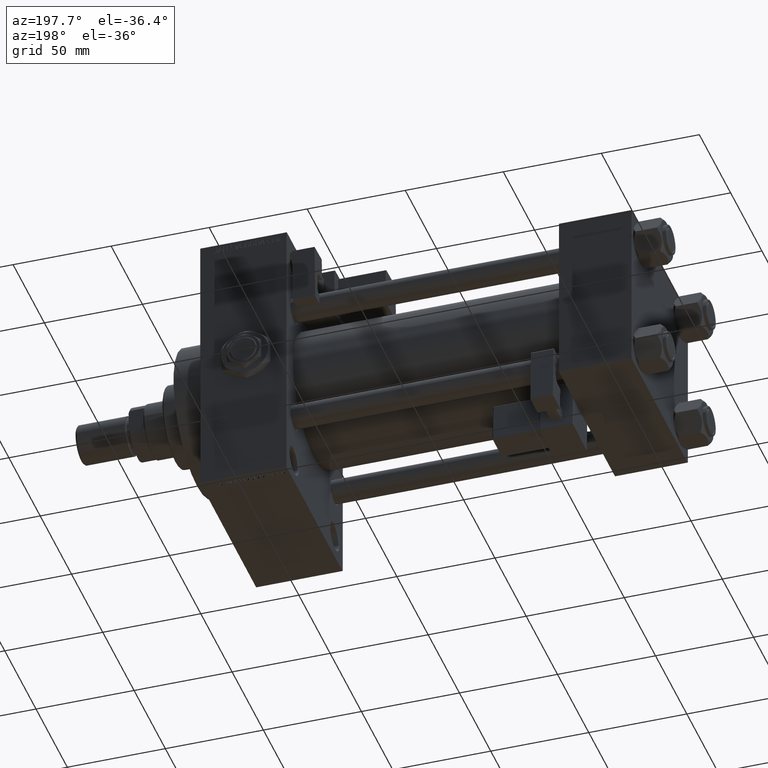
[diagram: clean part render]
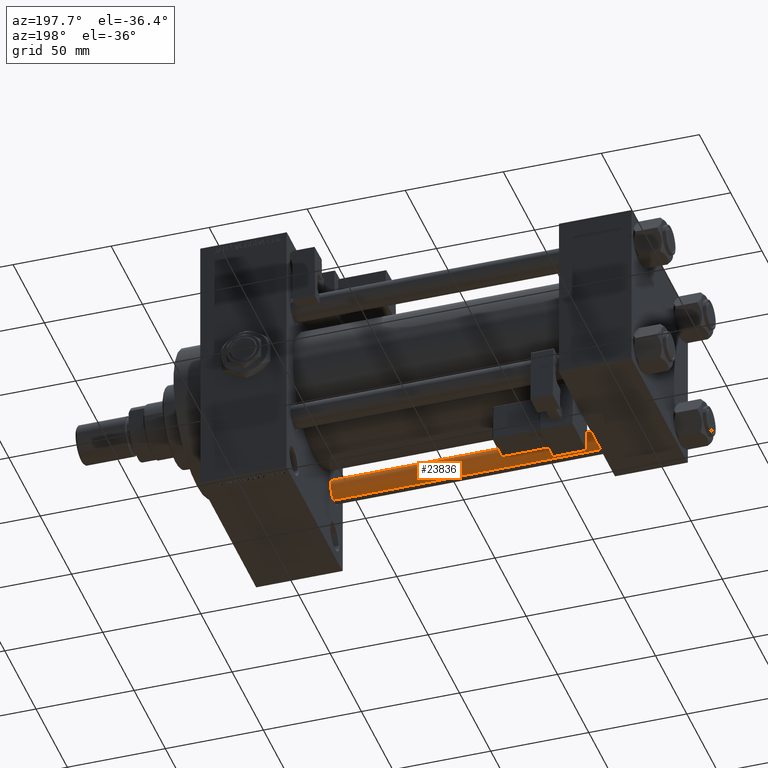
[diagram: same view with one face highlighted and labeled with its STEP entity id]
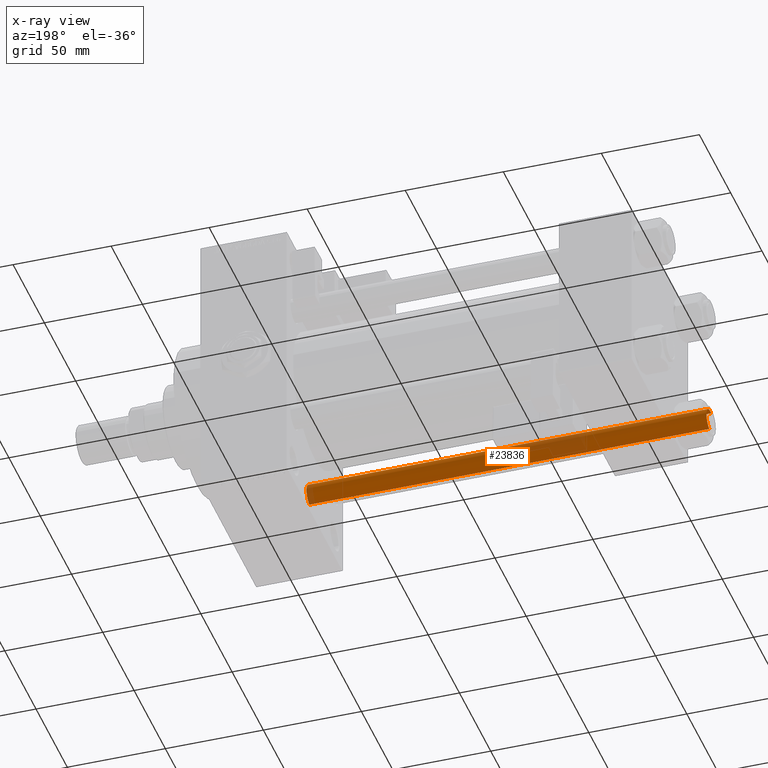
[diagram: x-ray of the same camera — body ghosted, the highlighted face saturated]
A machine part, auxiliary view. The second image highlights one B-rep face of the part: STEP entity #23836.
The next image is the same camera in x-ray: the body ghosted, the highlighted face saturated — about 15% of this face is hidden behind the body in this view.
In plain terms, the highlighted cylindrical surface (edge-blend (fillet) strip) has radius 6 mm, axis along (-1, 0, 0).
Its self-contained STEP definition (entity closure, byte-faithful):
#471 = ORIENTED_EDGE ( 'NONE', *, *, #45157, .T. ) ;
#525 = ORIENTED_EDGE ( 'NONE', *, *, #10959, .F. ) ;
#1122 = VERTEX_POINT ( 'NONE', #45999 ) ;
#2317 = CARTESIAN_POINT ( 'NONE',  ( -6.000000000000000888, 0.000000000000000000, 204.5000000000000568 ) ) ;
#2635 = CYLINDRICAL_SURFACE ( 'NONE', #12456, 6.000000000000000888 ) ;
#4630 = CIRCLE ( 'NONE', #42121, 6.000000000000000888 ) ;
#4824 = VERTEX_POINT ( 'NONE', #32039 ) ;
#5095 = DIRECTION ( 'NONE',  ( -0.000000000000000000, -0.000000000000000000, -1.000000000000000000 ) ) ;
#5436 = CARTESIAN_POINT ( 'NONE',  ( 6.000000000000000888, 7.347880794884119736E-16, 205.0000000000000000 ) ) ;
#7322 = DIRECTION ( 'NONE',  ( 0.000000000000000000, 0.000000000000000000, -1.000000000000000000 ) ) ;
#7768 = ORIENTED_EDGE ( 'NONE', *, *, #13468, .T. ) ;
#8756 = EDGE_LOOP ( 'NONE', ( #525, #27377, #471, #7768 ) ) ;
#10150 = CIRCLE ( 'NONE', #36796, 6.000000000000000888 ) ;
#10959 = EDGE_CURVE ( 'NONE', #1122, #4824, #17720, .T. ) ;
#12456 = AXIS2_PLACEMENT_3D ( 'NONE', #38646, #50121, #26917 ) ;
#13468 = EDGE_CURVE ( 'NONE', #21843, #4824, #4630, .T. ) ;
#15866 = DIRECTION ( 'NONE',  ( 1.000000000000000000, 0.000000000000000000, 0.000000000000000000 ) ) ;
#17720 = LINE ( 'NONE', #5436, #49138 ) ;
#20508 = CARTESIAN_POINT ( 'NONE',  ( -6.000000000000000888, 0.000000000000000000, 205.0000000000000000 ) ) ;
#21843 = VERTEX_POINT ( 'NONE', #35522 ) ;
#21967 = FACE_OUTER_BOUND ( 'NONE', #8756, .T. ) ;
#23255 = DIRECTION ( 'NONE',  ( 1.000000000000000000, 0.000000000000000000, 0.000000000000000000 ) ) ;
#23836 = ADVANCED_FACE ( 'NONE', ( #21967 ), #2635, .T. ) ;
#25442 = LINE ( 'NONE', #20508, #47639 ) ;
#26917 = DIRECTION ( 'NONE',  ( -1.000000000000000000, 0.000000000000000000, 0.000000000000000000 ) ) ;
#27377 = ORIENTED_EDGE ( 'NONE', *, *, #29200, .T. ) ;
#29200 = EDGE_CURVE ( 'NONE', #1122, #48517, #10150, .T. ) ;
#32039 = CARTESIAN_POINT ( 'NONE',  ( 6.000000000000000888, 7.347880794884119736E-16, 0.5000000000001114664 ) ) ;
#32258 = DIRECTION ( 'NONE',  ( -0.000000000000000000, -0.000000000000000000, 1.000000000000000000 ) ) ;
#35522 = CARTESIAN_POINT ( 'NONE',  ( -6.000000000000000888, 0.000000000000000000, 0.5000000000001114664 ) ) ;
#36796 = AXIS2_PLACEMENT_3D ( 'NONE', #43048, #7322, #23255 ) ;
#38646 = CARTESIAN_POINT ( 'NONE',  ( 0.000000000000000000, 0.000000000000000000, 205.0000000000000000 ) ) ;
#42121 = AXIS2_PLACEMENT_3D ( 'NONE', #51588, #32258, #15866 ) ;
#43048 = CARTESIAN_POINT ( 'NONE',  ( 0.000000000000000000, 0.000000000000000000, 204.5000000000000568 ) ) ;
#45157 = EDGE_CURVE ( 'NONE', #48517, #21843, #25442, .T. ) ;
#45999 = CARTESIAN_POINT ( 'NONE',  ( 6.000000000000000888, 7.347880794884119736E-16, 204.5000000000000568 ) ) ;
#47639 = VECTOR ( 'NONE', #5095, 1000.000000000000000 ) ;
#48517 = VERTEX_POINT ( 'NONE', #2317 ) ;
#49138 = VECTOR ( 'NONE', #49256, 1000.000000000000000 ) ;
#49256 = DIRECTION ( 'NONE',  ( -0.000000000000000000, -0.000000000000000000, -1.000000000000000000 ) ) ;
#50121 = DIRECTION ( 'NONE',  ( -0.000000000000000000, -0.000000000000000000, -1.000000000000000000 ) ) ;
#51588 = CARTESIAN_POINT ( 'NONE',  ( 0.000000000000000000, 0.000000000000000000, 0.5000000000001114664 ) ) ;